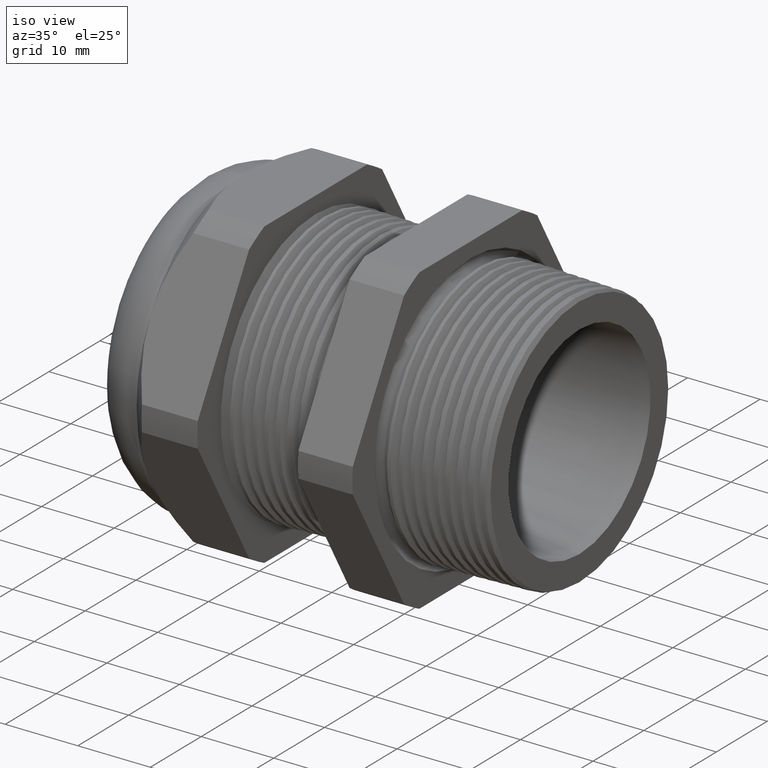
[diagram: clean part render]
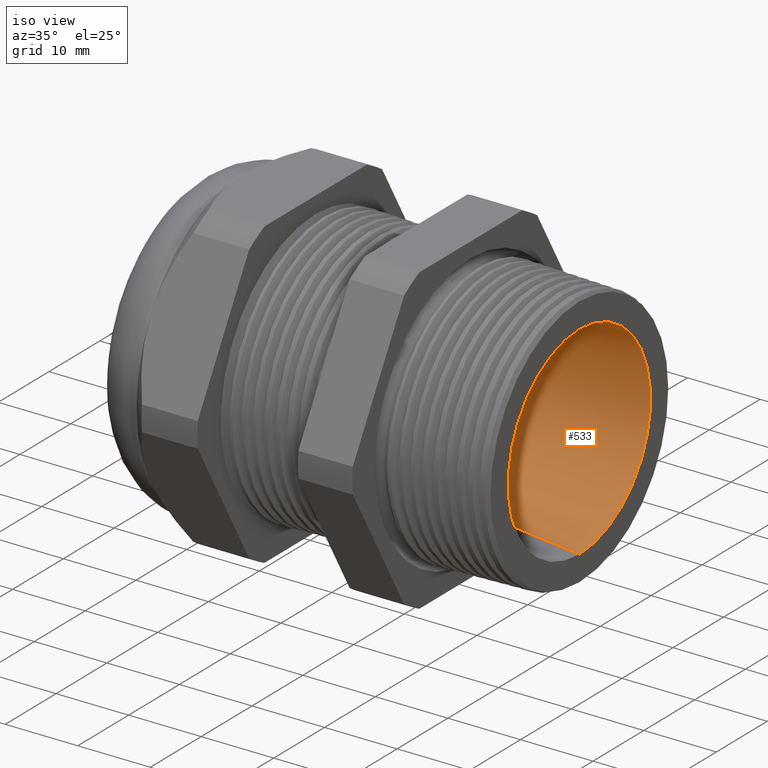
[diagram: same view with one face highlighted and labeled with its STEP entity id]
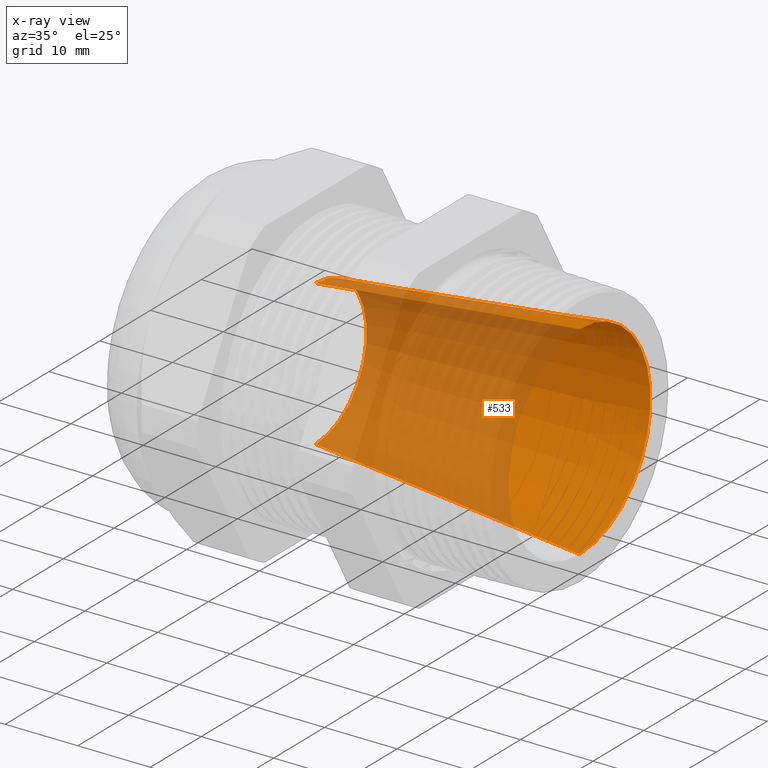
[diagram: x-ray of the same camera — body ghosted, the highlighted face saturated]
A machine part, iso view. The second image highlights one B-rep face of the part: STEP entity #533.
The next image is the same camera in x-ray: the body ghosted, the highlighted face saturated — about 59% of this face is hidden behind the body in this view.
In plain terms, the highlighted conical surface has half-angle 6.231 deg.
Its self-contained STEP definition (entity closure, byte-faithful):
#533 = ADVANCED_FACE ( 'NONE', ( #2408 ), #2406, .F. ) ;
#535 = EDGE_LOOP ( 'NONE', ( #575, #574, #572, #567 ) ) ;
#546 = EDGE_CURVE ( 'NONE', #678, #4569, #2448, .T. ) ;
#567 = ORIENTED_EDGE ( 'NONE', *, *, #546, .T. ) ;
#572 = ORIENTED_EDGE ( 'NONE', *, *, #679, .T. ) ;
#574 = ORIENTED_EDGE ( 'NONE', *, *, #578, .F. ) ;
#575 = ORIENTED_EDGE ( 'NONE', *, *, #4572, .F. ) ;
#578 = EDGE_CURVE ( 'NONE', #4585, #4596, #2528, .T. ) ;
#678 = VERTEX_POINT ( 'NONE', #2682 ) ;
#679 = EDGE_CURVE ( 'NONE', #4585, #678, #2681, .T. ) ;
#2405 = CARTESIAN_POINT ( 'NONE',  ( -1.151023622047244300, 0.0000000000000000000, 0.0000000000000000000 ) ) ;
#2406 = CONICAL_SURFACE ( 'NONE', #2468, 0.3950000000000000200, 0.1087567445291814200 ) ;
#2407 = DIRECTION ( 'NONE',  ( 1.000000000000000000, 0.0000000000000000000, 0.0000000000000000000 ) ) ;
#2408 = FACE_OUTER_BOUND ( 'NONE', #535, .T. ) ;
#2444 = DIRECTION ( 'NONE',  ( 0.0000000000000000000, 0.0000000000000000000, -1.000000000000000000 ) ) ;
#2445 = DIRECTION ( 'NONE',  ( 1.000000000000000000, 0.0000000000000000000, 0.0000000000000000000 ) ) ;
#2446 = CARTESIAN_POINT ( 'NONE',  ( 0.2800000000000000300, 0.0000000000000000000, 0.0000000000000000000 ) ) ;
#2447 = AXIS2_PLACEMENT_3D ( 'NONE', #2446, #2445, #2444 ) ;
#2448 = CIRCLE ( 'NONE', #2447, 0.5512500000000000200 ) ;
#2467 = DIRECTION ( 'NONE',  ( 0.0000000000000000000, 0.0000000000000000000, -1.000000000000000000 ) ) ;
#2468 = AXIS2_PLACEMENT_3D ( 'NONE', #2405, #2407, #2467 ) ;
#2470 = CARTESIAN_POINT ( 'NONE',  ( -1.151023622047244300, 0.0000000000000000000, 0.0000000000000000000 ) ) ;
#2525 = DIRECTION ( 'NONE',  ( 0.0000000000000000000, 0.0000000000000000000, -1.000000000000000000 ) ) ;
#2526 = DIRECTION ( 'NONE',  ( 1.000000000000000000, 0.0000000000000000000, 0.0000000000000000000 ) ) ;
#2527 = AXIS2_PLACEMENT_3D ( 'NONE', #2470, #2526, #2525 ) ;
#2528 = CIRCLE ( 'NONE', #2527, 0.3950000000000000200 ) ;
#2678 = DIRECTION ( 'NONE',  ( 0.9940918122236279700, 0.0000000000000000000, -0.1085424749577012000 ) ) ;
#2679 = VECTOR ( 'NONE', #2678, 39.37007874015748100 ) ;
#2680 = CARTESIAN_POINT ( 'NONE',  ( -1.151023622047244300, 0.0000000000000000000, -0.3950000000000000200 ) ) ;
#2681 = LINE ( 'NONE', #2680, #2679 ) ;
#2682 = CARTESIAN_POINT ( 'NONE',  ( 0.2800000000000000300, 0.0000000000000000000, -0.5512500000000000200 ) ) ;
#4239 = DIRECTION ( 'NONE',  ( 0.9940918122236279700, 1.329261945284804900E-017, 0.1085424749577012000 ) ) ;
#4240 = VECTOR ( 'NONE', #4239, 39.37007874015748100 ) ;
#4241 = CARTESIAN_POINT ( 'NONE',  ( -1.151023622047244300, 4.837354856632045600E-017, 0.3950000000000000200 ) ) ;
#4242 = LINE ( 'NONE', #4241, #4240 ) ;
#4248 = CARTESIAN_POINT ( 'NONE',  ( 0.2800000000000000300, 6.750865480299784700E-017, 0.5512500000000000200 ) ) ;
#4258 = CARTESIAN_POINT ( 'NONE',  ( -1.151023622047244300, 5.794110168465915100E-017, 0.3950000000000000200 ) ) ;
#4275 = CARTESIAN_POINT ( 'NONE',  ( -1.151023622047244300, 0.0000000000000000000, -0.3950000000000000200 ) ) ;
#4569 = VERTEX_POINT ( 'NONE', #4248 ) ;
#4572 = EDGE_CURVE ( 'NONE', #4596, #4569, #4242, .T. ) ;
#4585 = VERTEX_POINT ( 'NONE', #4275 ) ;
#4596 = VERTEX_POINT ( 'NONE', #4258 ) ;